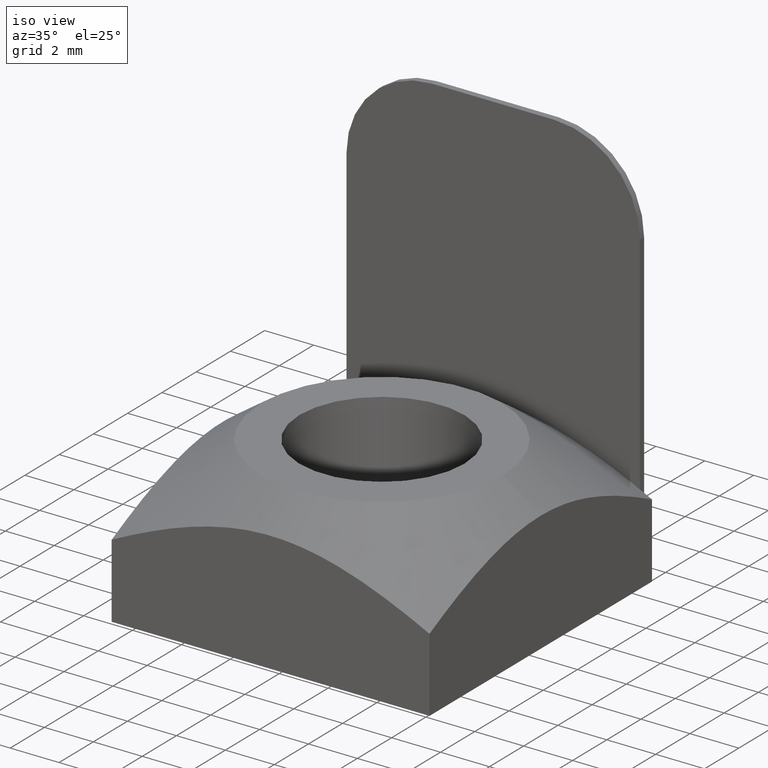
[diagram: clean part render]
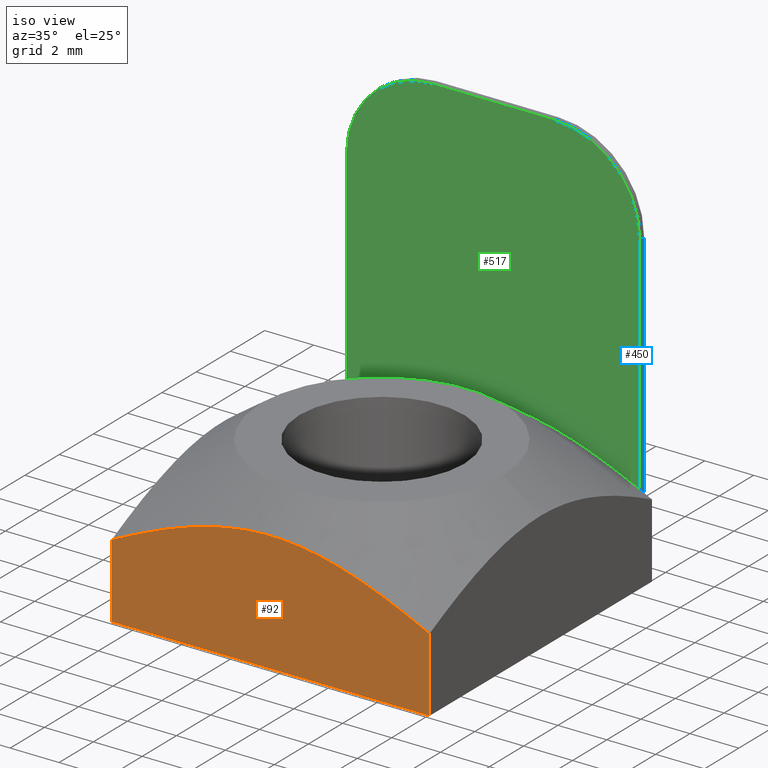
[diagram: same view with three faces highlighted in distinct colors, each labeled with its STEP entity id]
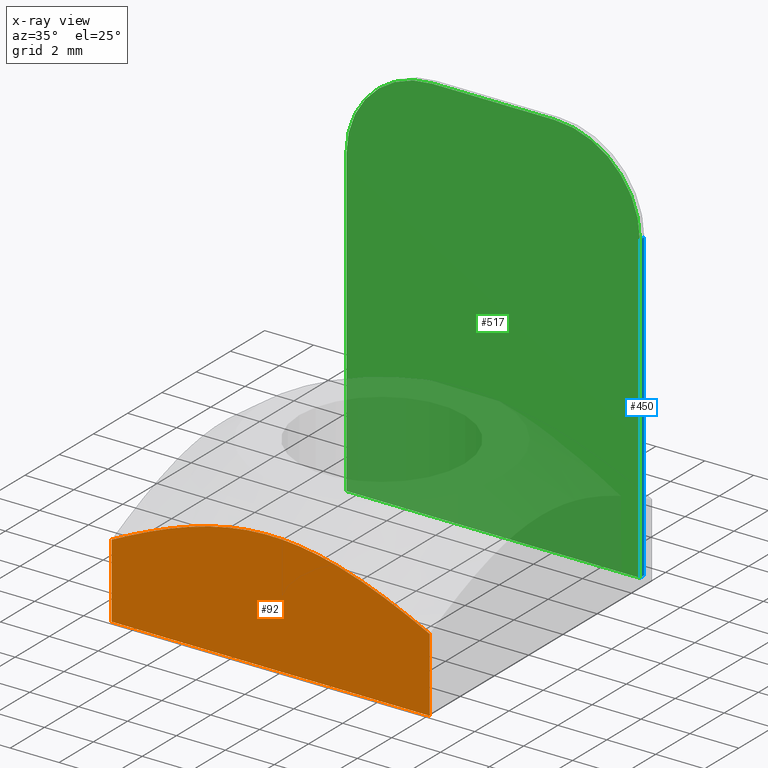
[diagram: x-ray of the same camera — body ghosted, the three highlighted faces saturated]
A machine part, iso view with three faces highlighted in distinct colors.
The next image is the same camera in x-ray (body ghosted, the three faces saturated) — at least one of them is partly hidden behind the body in this view.
Their STEP definitions:

[orange] entity #92 — the highlighted planar face has unit normal (0, 1, 0).
#9=CARTESIAN_POINT('',(-6.499999999973852,-6.499999999974079,0.0));
#10=VERTEX_POINT('',#9);
#17=CARTESIAN_POINT('',(-6.499999999973852,-6.499999999974079,3.034437679604906));
#18=VERTEX_POINT('',#17);
#19=CARTESIAN_POINT('',(-6.499999999973852,-6.499999999974079,3.034437679604906));
#20=DIRECTION('',(0.0,0.0,-1.0));
#21=VECTOR('',#20,3.034437679604906);
#22=LINE('',#19,#21);
#23=EDGE_CURVE('',#18,#10,#22,.T.);
#52=CARTESIAN_POINT('',(-6.499999999973852,-6.499999999974079,6.0));
#53=DIRECTION('',(0.0,1.0,0.0));
#54=DIRECTION('',(1.0,0.0,0.0));
#55=AXIS2_PLACEMENT_3D('',#52,#53,#54);
#56=PLANE('',#55);
#57=CARTESIAN_POINT('',(6.499999999974079,-6.499999999974079,0.0));
#58=VERTEX_POINT('',#57);
#59=CARTESIAN_POINT('',(-6.499999999973852,-6.499999999974079,0.0));
#60=DIRECTION('',(1.0,0.0,0.0));
#61=VECTOR('',#60,12.999999999947995);
#62=LINE('',#59,#61);
#63=EDGE_CURVE('',#10,#58,#62,.T.);
#64=ORIENTED_EDGE('',*,*,#63,.T.);
#65=CARTESIAN_POINT('',(6.499999999974079,-6.499999999974079,3.034437679604906));
#66=VERTEX_POINT('',#65);
#67=CARTESIAN_POINT('',(6.499999999974079,-6.499999999974079,3.034437679604906));
#68=DIRECTION('',(0.0,0.0,-1.0));
#69=VECTOR('',#68,3.034437679604906);
#70=LINE('',#67,#69);
#71=EDGE_CURVE('',#66,#58,#70,.T.);
#72=ORIENTED_EDGE('',*,*,#71,.F.);
#73=CARTESIAN_POINT('',(6.499999999974079,-6.499999999974079,3.034437679604906));
#74=CARTESIAN_POINT('',(5.963475184197932,-6.499999999974079,3.300082650377685));
#75=CARTESIAN_POINT('',(4.990047889131347,-6.499999999974534,3.753273584885145));
#76=CARTESIAN_POINT('',(3.581020279306358,-6.499999999973625,4.294954268034343));
#77=CARTESIAN_POINT('',(2.325183673444599,-6.499999999974989,4.659603356991499));
#78=CARTESIAN_POINT('',(1.114697758099510,-6.499999999973170,4.877442321284664));
#79=CARTESIAN_POINT('',(-0.091791976900140,-6.499999999974989,4.946072576401746));
#80=CARTESIAN_POINT('',(-1.288091550251238,-6.499999999977263,4.855365513273293));
#81=CARTESIAN_POINT('',(-2.551471572318178,-6.499999999962711,4.605479998874193));
#82=CARTESIAN_POINT('',(-3.827364189701029,-6.499999999977717,4.209600242582467));
#83=CARTESIAN_POINT('',(-5.174177651178525,-6.499999999973625,3.668900488673009));
#84=CARTESIAN_POINT('',(-6.048409974867354,-6.499999999974079,3.258029609546086));
#85=CARTESIAN_POINT('',(-6.499999999974079,-6.499999999974079,3.034437679604906));
#86=B_SPLINE_CURVE_WITH_KNOTS('',3,(#73,#74,#75,#76,#77,#78,#79,#80,#81,#82,#83,#84,#85),.UNSPECIFIED.,.F.,.U.,(4,1,1,1,1,1,1,1,1,1,4),(0.0,1.796348609622239,3.219266909664066,4.525760464110903,5.714993134359137,6.903296288721684,8.143598724464722,9.306388059168363,10.761381849059740,12.146239828318263,13.658133343956333),.UNSPECIFIED.);
#87=EDGE_CURVE('',#66,#18,#86,.T.);
#88=ORIENTED_EDGE('',*,*,#87,.T.);
#89=ORIENTED_EDGE('',*,*,#23,.T.);
#90=EDGE_LOOP('',(#64,#72,#88,#89));
#91=FACE_OUTER_BOUND('',#90,.T.);
#92=ADVANCED_FACE('',(#91),#56,.F.);

[blue] entity #450 — the highlighted planar face has unit normal (1, 0, 0).
#392=CARTESIAN_POINT('',(6.000000000000227,6.499999999974079,12.500000000000000));
#393=VERTEX_POINT('',#392);
#401=CARTESIAN_POINT('',(6.000000000000227,6.749999999974079,12.500000000000000));
#402=VERTEX_POINT('',#401);
#403=CARTESIAN_POINT('',(6.000000000000227,6.499999999974079,12.500000000000000));
#404=DIRECTION('',(0.0,1.0,0.0));
#405=VECTOR('',#404,0.250000000000000);
#406=LINE('',#403,#405);
#407=EDGE_CURVE('',#393,#402,#406,.T.);
#420=CARTESIAN_POINT('',(6.000000000000227,6.499999999974079,12.500000000000000));
#421=DIRECTION('',(1.0,0.0,0.0));
#422=DIRECTION('',(0.0,0.0,-1.0));
#423=AXIS2_PLACEMENT_3D('',#420,#421,#422);
#424=PLANE('',#423);
#425=CARTESIAN_POINT('',(6.000000000000227,6.499999999974079,1.776357E-015));
#426=VERTEX_POINT('',#425);
#427=CARTESIAN_POINT('',(6.000000000000227,6.499999999974079,12.500000000000000));
#428=DIRECTION('',(0.0,0.0,-1.0));
#429=VECTOR('',#428,12.499999999999998);
#430=LINE('',#427,#429);
#431=EDGE_CURVE('',#393,#426,#430,.T.);
#432=ORIENTED_EDGE('',*,*,#431,.T.);
#433=CARTESIAN_POINT('',(6.000000000000227,6.749999999974079,1.776357E-015));
#434=VERTEX_POINT('',#433);
#435=CARTESIAN_POINT('',(6.000000000000227,6.499999999974079,1.776357E-015));
#436=DIRECTION('',(0.0,1.0,0.0));
#437=VECTOR('',#436,0.250000000000000);
#438=LINE('',#435,#437);
#439=EDGE_CURVE('',#426,#434,#438,.T.);
#440=ORIENTED_EDGE('',*,*,#439,.T.);
#441=CARTESIAN_POINT('',(6.000000000000227,6.749999999974079,12.500000000000000));
#442=DIRECTION('',(0.0,0.0,-1.0));
#443=VECTOR('',#442,12.499999999999998);
#444=LINE('',#441,#443);
#445=EDGE_CURVE('',#402,#434,#444,.T.);
#446=ORIENTED_EDGE('',*,*,#445,.F.);
#447=ORIENTED_EDGE('',*,*,#407,.F.);
#448=EDGE_LOOP('',(#432,#440,#446,#447));
#449=FACE_OUTER_BOUND('',#448,.T.);
#450=ADVANCED_FACE('',(#449),#424,.T.);

[green] entity #517 — the highlighted planar face has unit normal (0, 1, 0).
#319=CARTESIAN_POINT('',(-5.999999999999773,6.499999999974079,12.500000000000000));
#320=VERTEX_POINT('',#319);
#321=CARTESIAN_POINT('',(-2.499999999999773,6.499999999974079,16.0));
#322=VERTEX_POINT('',#321);
#323=CARTESIAN_POINT('',(-2.499999999999773,6.499999999974079,12.500000000000000));
#324=DIRECTION('',(0.0,1.0,0.0));
#325=DIRECTION('',(0.0,0.0,1.0));
#326=AXIS2_PLACEMENT_3D('',#323,#324,#325);
#327=CIRCLE('',#326,3.500000000000000);
#328=EDGE_CURVE('',#320,#322,#327,.T.);
#361=CARTESIAN_POINT('',(2.500000000000227,6.499999999974079,16.0));
#362=VERTEX_POINT('',#361);
#363=CARTESIAN_POINT('',(-2.499999999999773,6.499999999974079,16.0));
#364=DIRECTION('',(1.0,0.0,0.0));
#365=VECTOR('',#364,5.0);
#366=LINE('',#363,#365);
#367=EDGE_CURVE('',#322,#362,#366,.T.);
#392=CARTESIAN_POINT('',(6.000000000000227,6.499999999974079,12.500000000000000));
#393=VERTEX_POINT('',#392);
#394=CARTESIAN_POINT('',(2.500000000000227,6.499999999974079,12.500000000000000));
#395=DIRECTION('',(0.0,1.0,0.0));
#396=DIRECTION('',(1.0,0.0,0.0));
#397=AXIS2_PLACEMENT_3D('',#394,#395,#396);
#398=CIRCLE('',#397,3.500000000000000);
#399=EDGE_CURVE('',#362,#393,#398,.T.);
#425=CARTESIAN_POINT('',(6.000000000000227,6.499999999974079,1.776357E-015));
#426=VERTEX_POINT('',#425);
#427=CARTESIAN_POINT('',(6.000000000000227,6.499999999974079,12.500000000000000));
#428=DIRECTION('',(0.0,0.0,-1.0));
#429=VECTOR('',#428,12.499999999999998);
#430=LINE('',#427,#429);
#431=EDGE_CURVE('',#393,#426,#430,.T.);
#456=CARTESIAN_POINT('',(-5.999999999999773,6.499999999974079,0.0));
#457=VERTEX_POINT('',#456);
#458=CARTESIAN_POINT('',(6.000000000000227,6.499999999974079,1.513940E-015));
#459=DIRECTION('',(-1.0,0.0,0.0));
#460=VECTOR('',#459,12.0);
#461=LINE('',#458,#460);
#462=EDGE_CURVE('',#426,#457,#461,.T.);
#487=CARTESIAN_POINT('',(-5.999999999999773,6.499999999974079,0.0));
#488=DIRECTION('',(0.0,0.0,1.0));
#489=VECTOR('',#488,12.500000000000000);
#490=LINE('',#487,#489);
#491=EDGE_CURVE('',#457,#320,#490,.T.);
#504=CARTESIAN_POINT('',(7.200042625428978,6.499999999974079,-1.600042625411713));
#505=DIRECTION('',(0.0,1.0,0.0));
#506=DIRECTION('',(-1.0,0.0,0.0));
#507=AXIS2_PLACEMENT_3D('',#504,#505,#506);
#508=PLANE('',#507);
#509=ORIENTED_EDGE('',*,*,#491,.F.);
#510=ORIENTED_EDGE('',*,*,#462,.F.);
#511=ORIENTED_EDGE('',*,*,#431,.F.);
#512=ORIENTED_EDGE('',*,*,#399,.F.);
#513=ORIENTED_EDGE('',*,*,#367,.F.);
#514=ORIENTED_EDGE('',*,*,#328,.F.);
#515=EDGE_LOOP('',(#509,#510,#511,#512,#513,#514));
#516=FACE_OUTER_BOUND('',#515,.T.);
#517=ADVANCED_FACE('',(#516),#508,.F.);